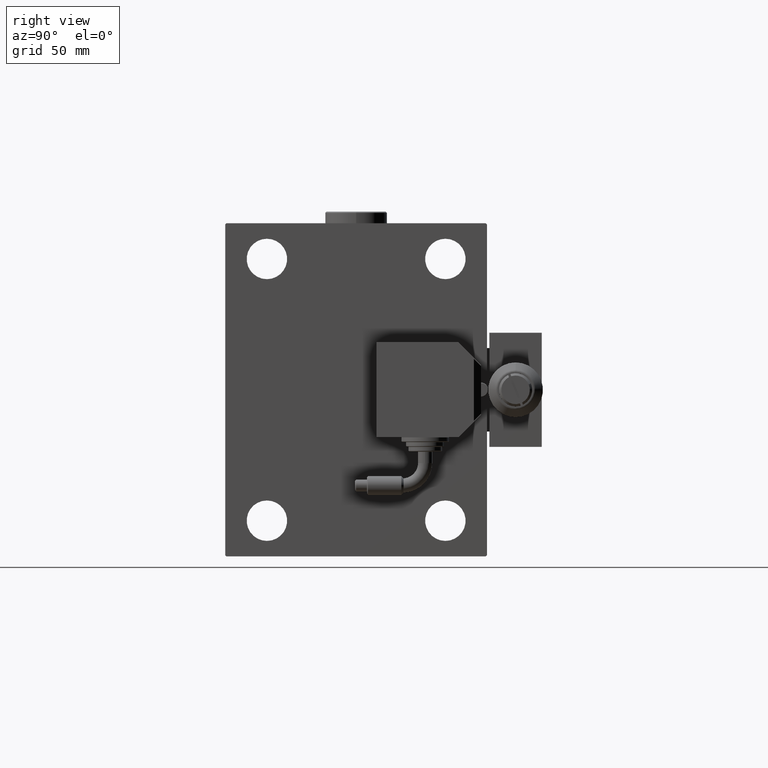
[diagram: clean part render]
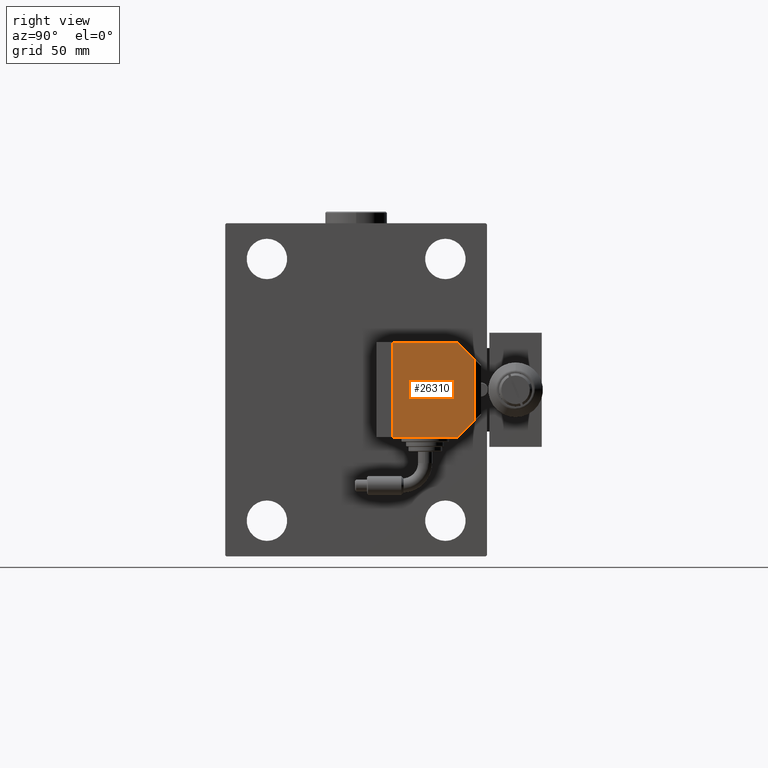
[diagram: same view with one face highlighted and labeled with its STEP entity id]
A machine part, right view. The second image highlights one B-rep face of the part: STEP entity #26310.
In plain terms, the highlighted planar face has unit normal (-1, 0, -0).
Its self-contained STEP definition (entity closure, byte-faithful):
#829 = EDGE_CURVE ( 'NONE', #38808, #15338, #49810, .T. ) ;
#2260 = VERTEX_POINT ( 'NONE', #27835 ) ;
#3574 = DIRECTION ( 'NONE',  ( -1.284980352575421081E-16, -1.000000000000000000, -0.000000000000000000 ) ) ;
#3678 = CARTESIAN_POINT ( 'NONE',  ( 12.99999999999999112, 20.50000000000009592, -10.00000000000000000 ) ) ;
#4474 = CARTESIAN_POINT ( 'NONE',  ( 20.00000000000005684, 13.50000000000003730, -10.00000000000000000 ) ) ;
#4739 = DIRECTION ( 'NONE',  ( 1.284980352575412699E-16, 1.000000000000000000, 0.000000000000000000 ) ) ;
#5266 = LINE ( 'NONE', #20928, #19737 ) ;
#6389 = VERTEX_POINT ( 'NONE', #42403 ) ;
#6838 = DIRECTION ( 'NONE',  ( 0.000000000000000000, 0.000000000000000000, 1.000000000000000000 ) ) ;
#7894 = PLANE ( 'NONE',  #11790 ) ;
#8089 = LINE ( 'NONE', #39949, #8274 ) ;
#8274 = VECTOR ( 'NONE', #3574, 1000.000000000000000 ) ;
#10274 = CARTESIAN_POINT ( 'NONE',  ( -19.99999999999994316, -13.49999999999996092, -10.00000000000000000 ) ) ;
#10532 = DIRECTION ( 'NONE',  ( -1.284980352575421081E-16, -1.000000000000000000, -0.000000000000000000 ) ) ;
#10846 = DIRECTION ( 'NONE',  ( -0.7071067811865356934, -0.7071067811865593411, -0.000000000000000000 ) ) ;
#11790 = AXIS2_PLACEMENT_3D ( 'NONE', #19831, #6838, #24076 ) ;
#12886 = CARTESIAN_POINT ( 'NONE',  ( -19.99999999999994316, -13.49999999999996092, -10.00000000000000000 ) ) ;
#15338 = VERTEX_POINT ( 'NONE', #41844 ) ;
#15622 = DIRECTION ( 'NONE',  ( 1.000000000000000000, 0.000000000000000000, 0.000000000000000000 ) ) ;
#16555 = ORIENTED_EDGE ( 'NONE', *, *, #29385, .F. ) ;
#19270 = EDGE_CURVE ( 'NONE', #2260, #6389, #8089, .T. ) ;
#19558 = EDGE_CURVE ( 'NONE', #33391, #29460, #22889, .T. ) ;
#19737 = VECTOR ( 'NONE', #4739, 1000.000000000000000 ) ;
#19831 = CARTESIAN_POINT ( 'NONE',  ( 0.000000000000000000, 0.000000000000000000, -10.00000000000000000 ) ) ;
#20928 = CARTESIAN_POINT ( 'NONE',  ( 20.00000000000005329, -13.49999999999996092, -10.00000000000000000 ) ) ;
#22889 = LINE ( 'NONE', #50815, #37074 ) ;
#23332 = CARTESIAN_POINT ( 'NONE',  ( 0.000000000000000000, 20.50000000000009592, -10.00000000000000000 ) ) ;
#24076 = DIRECTION ( 'NONE',  ( 1.000000000000000000, 0.000000000000000000, -0.000000000000000000 ) ) ;
#24942 = FACE_OUTER_BOUND ( 'NONE', #42509, .T. ) ;
#26310 = ADVANCED_FACE ( 'NONE', ( #24942 ), #7894, .F. ) ;
#27094 = VECTOR ( 'NONE', #10846, 1000.000000000000000 ) ;
#27835 = CARTESIAN_POINT ( 'NONE',  ( -19.99999999999993960, 13.49999999999986500, -10.00000000000000000 ) ) ;
#28164 = VECTOR ( 'NONE', #15622, 1000.000000000000000 ) ;
#28393 = ORIENTED_EDGE ( 'NONE', *, *, #19558, .F. ) ;
#29385 = EDGE_CURVE ( 'NONE', #34305, #2260, #38741, .T. ) ;
#29460 = VERTEX_POINT ( 'NONE', #3678 ) ;
#30667 = DIRECTION ( 'NONE',  ( 1.000000000000000000, 0.000000000000000000, 0.000000000000000000 ) ) ;
#32102 = ORIENTED_EDGE ( 'NONE', *, *, #35917, .F. ) ;
#33391 = VERTEX_POINT ( 'NONE', #4474 ) ;
#33526 = ORIENTED_EDGE ( 'NONE', *, *, #829, .F. ) ;
#34305 = VERTEX_POINT ( 'NONE', #37338 ) ;
#34450 = LINE ( 'NONE', #10274, #44645 ) ;
#34837 = EDGE_CURVE ( 'NONE', #34305, #29460, #43541, .T. ) ;
#35917 = EDGE_CURVE ( 'NONE', #15338, #33391, #5266, .T. ) ;
#37074 = VECTOR ( 'NONE', #39368, 1000.000000000000114 ) ;
#37338 = CARTESIAN_POINT ( 'NONE',  ( -12.99999999999994138, 20.50000000000009592, -10.00000000000000000 ) ) ;
#38741 = LINE ( 'NONE', #39269, #27094 ) ;
#38808 = VERTEX_POINT ( 'NONE', #12886 ) ;
#39109 = VECTOR ( 'NONE', #30667, 1000.000000000000000 ) ;
#39269 = CARTESIAN_POINT ( 'NONE',  ( -19.99999999999993960, 13.49999999999986500, -10.00000000000000000 ) ) ;
#39368 = DIRECTION ( 'NONE',  ( -0.7071067811865479058, 0.7071067811865470176, -0.000000000000000000 ) ) ;
#39949 = CARTESIAN_POINT ( 'NONE',  ( -19.99999999999994316, -13.49999999999996092, -10.00000000000000000 ) ) ;
#41844 = CARTESIAN_POINT ( 'NONE',  ( 20.00000000000005329, -13.49999999999996092, -10.00000000000000000 ) ) ;
#42403 = CARTESIAN_POINT ( 'NONE',  ( -19.99999999999993960, 2.569960705150834076E-15, -9.999999999999996447 ) ) ;
#42509 = EDGE_LOOP ( 'NONE', ( #16555, #44880, #28393, #32102, #33526, #43357, #50284 ) ) ;
#43357 = ORIENTED_EDGE ( 'NONE', *, *, #48584, .F. ) ;
#43541 = LINE ( 'NONE', #23332, #28164 ) ;
#44645 = VECTOR ( 'NONE', #10532, 1000.000000000000000 ) ;
#44880 = ORIENTED_EDGE ( 'NONE', *, *, #34837, .T. ) ;
#48584 = EDGE_CURVE ( 'NONE', #6389, #38808, #34450, .T. ) ;
#49810 = LINE ( 'NONE', #50337, #39109 ) ;
#50284 = ORIENTED_EDGE ( 'NONE', *, *, #19270, .F. ) ;
#50337 = CARTESIAN_POINT ( 'NONE',  ( -19.99999999999994316, -13.49999999999996092, -10.00000000000000000 ) ) ;
#50815 = CARTESIAN_POINT ( 'NONE',  ( 9.999999999999984013, 23.50000000000009592, -10.00000000000000000 ) ) ;